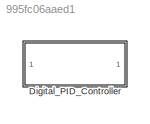
MODEL slx_995fc06aaed1
KIND model
CONFIG AbsTol = auto
CONFIG EnableMultiTasking = off
CONFIG FixedStep = auto
CONFIG MaxStep = auto
CONFIG MinStep = auto
CONFIG RelTol = 1e-3
CONFIG SampleTimeConstraint = Unconstrained
CONFIG SolverName = VariableStepAuto
CONFIG StartTime = 0.0
CONFIG StopTime = 10.0
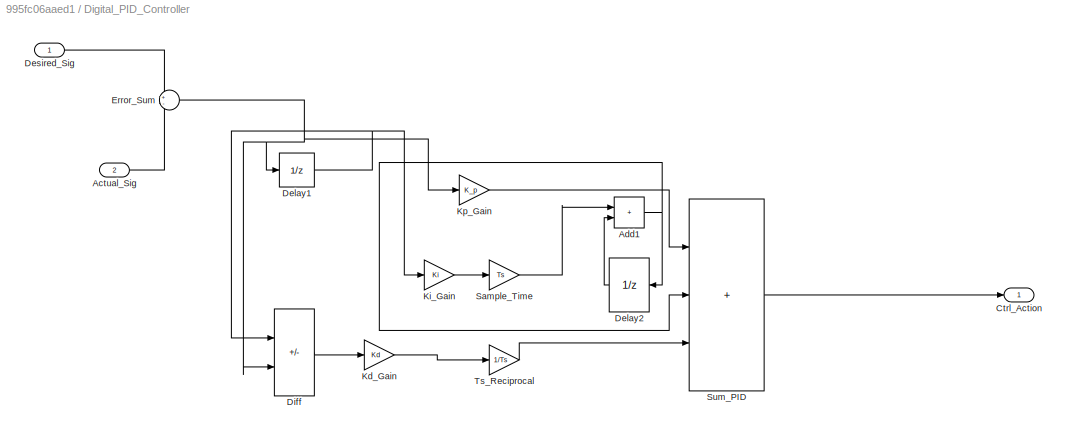
BLOCK [SubSystem] Digital_PID_Controller
BLOCK [Inport] Digital_PID_Controller/Actual_Sig
  Port = 2
BLOCK [Sum] Digital_PID_Controller/Add1
  IconShape = rectangular
BLOCK [Outport] Digital_PID_Controller/Ctrl_Action
BLOCK [UnitDelay] Digital_PID_Controller/Delay1
  HasFrameUpgradeWarning = on
  SampleTime = -1
BLOCK [UnitDelay] Digital_PID_Controller/Delay2
  HasFrameUpgradeWarning = on
  SampleTime = -1
BLOCK [Inport] Digital_PID_Controller/Desired_Sig
BLOCK [Sum] Digital_PID_Controller/Diff
  IconShape = rectangular
  Inputs = -+
BLOCK [Sum] Digital_PID_Controller/Error_Sum
  Inputs = +-
BLOCK [Gain] Digital_PID_Controller/Kd_Gain
  Gain = Kd
BLOCK [Gain] Digital_PID_Controller/Ki_Gain
  Gain = Ki
BLOCK [Gain] Digital_PID_Controller/Kp_Gain
  Gain = K_p
BLOCK [Gain] Digital_PID_Controller/Sample_Time
  Gain = Ts
BLOCK [Sum] Digital_PID_Controller/Sum_PID
  IconShape = rectangular
  Inputs = +++
BLOCK [Gain] Digital_PID_Controller/Ts_Reciprocal
  Gain = 1/Ts
LINE Digital_PID_Controller/Actual_Sig:1 -> Digital_PID_Controller/Error_Sum:2
NET Digital_PID_Controller/Add1:1 -> Digital_PID_Controller/Delay2:1, Digital_PID_Controller/Sum_PID:2
NET Digital_PID_Controller/Delay1:1 -> Digital_PID_Controller/Diff:1, Digital_PID_Controller/Ki_Gain:1
LINE Digital_PID_Controller/Delay2:1 -> Digital_PID_Controller/Add1:2
LINE Digital_PID_Controller/Desired_Sig:1 -> Digital_PID_Controller/Error_Sum:1
LINE Digital_PID_Controller/Diff:1 -> Digital_PID_Controller/Kd_Gain:1
NET Digital_PID_Controller/Error_Sum:1 -> Digital_PID_Controller/Delay1:1, Digital_PID_Controller/Diff:2, Digital_PID_Controller/Kp_Gain:1
LINE Digital_PID_Controller/Kd_Gain:1 -> Digital_PID_Controller/Ts_Reciprocal:1
LINE Digital_PID_Controller/Ki_Gain:1 -> Digital_PID_Controller/Sample_Time:1
LINE Digital_PID_Controller/Kp_Gain:1 -> Digital_PID_Controller/Sum_PID:1
LINE Digital_PID_Controller/Sample_Time:1 -> Digital_PID_Controller/Add1:1
LINE Digital_PID_Controller/Sum_PID:1 -> Digital_PID_Controller/Ctrl_Action:1
LINE Digital_PID_Controller/Ts_Reciprocal:1 -> Digital_PID_Controller/Sum_PID:3
note: NET lines group one-source signal fan-out (src -> all destinations, sorted); 1:1 wires keep LINE
